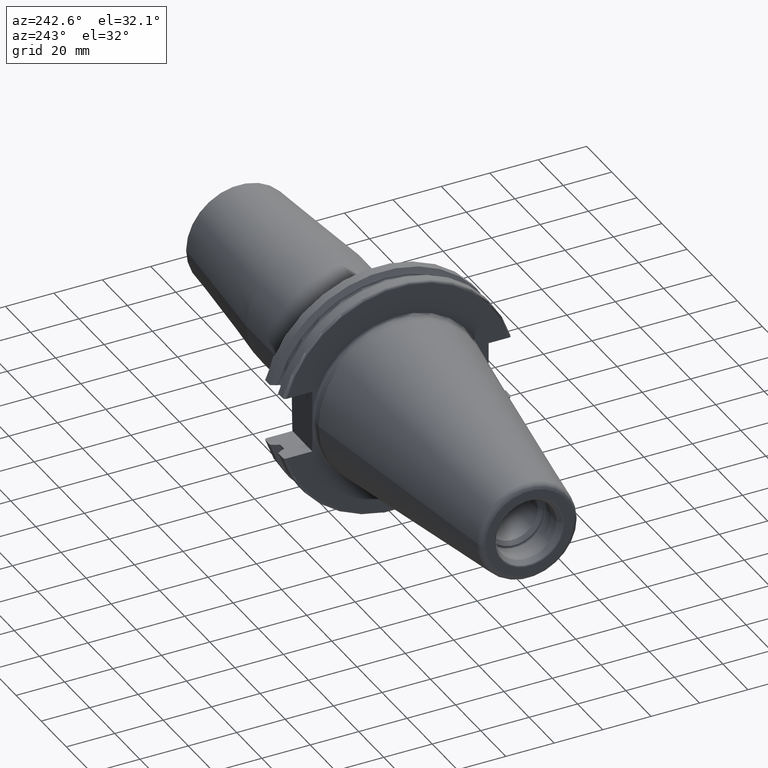
[diagram: clean part render]
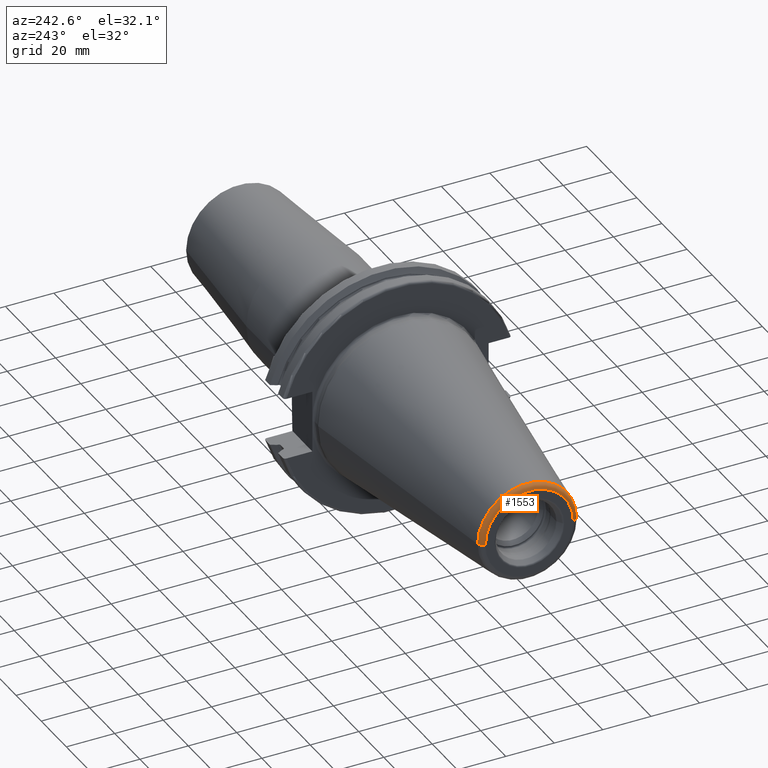
[diagram: same view with one face highlighted and labeled with its STEP entity id]
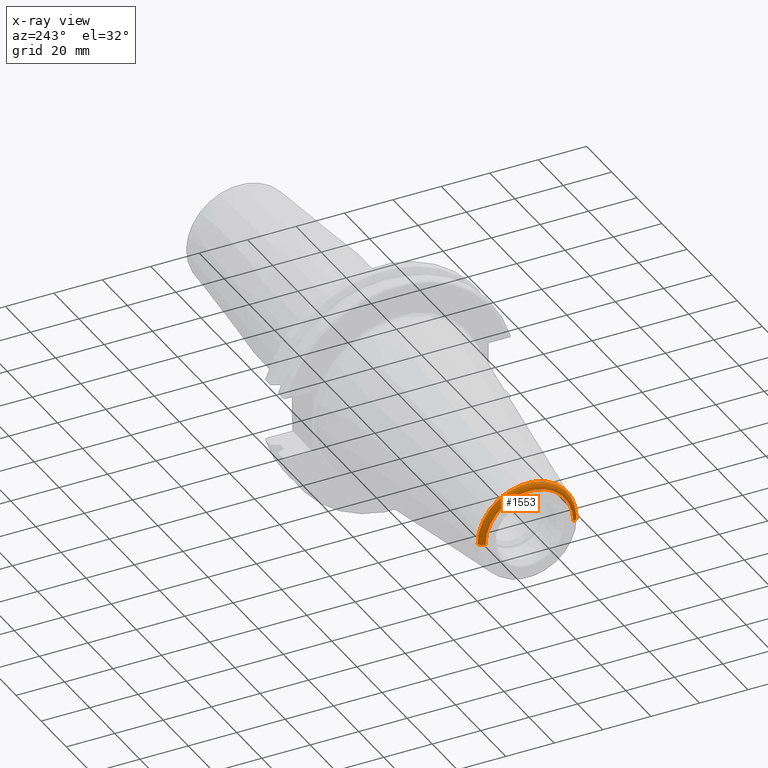
[diagram: x-ray of the same camera — body ghosted, the highlighted face saturated]
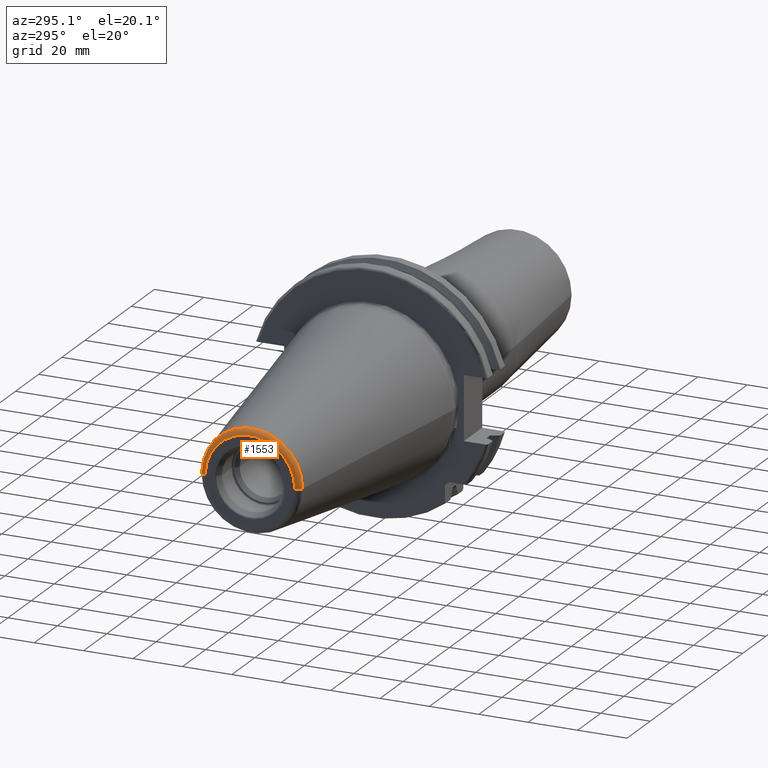
[diagram: same view with one face highlighted and labeled with its STEP entity id]
A machine part, auxiliary view. The second image highlights one B-rep face of the part: STEP entity #1553.
The next image is the same camera in x-ray: the body ghosted, the highlighted face saturated — about 0% of this face is hidden behind the body in this view.
A second angle (auxiliary view) of the same face is appended — the face is thin or edge-on in the first view.
In plain terms, the highlighted toroidal blend (fillet) surface has major radius 18.1614 mm and minor (blend) radius 2.25 mm.
Its self-contained STEP definition (entity closure, byte-faithful):
#7=CARTESIAN_POINT('',(-1.016E2,0.E0,0.E0));
#8=DIRECTION('',(1.E0,0.E0,0.E0));
#9=DIRECTION('',(0.E0,1.E0,0.E0));
#10=AXIS2_PLACEMENT_3D('',#7,#8,#9);
#22=CARTESIAN_POINT('',(-9.935E1,1.816144700117E1,0.E0));
#23=DIRECTION('',(0.E0,0.E0,1.E0));
#24=DIRECTION('',(-1.443186691705E-1,9.895312636440E-1,0.E0));
#25=AXIS2_PLACEMENT_3D('',#22,#23,#24);
#27=CARTESIAN_POINT('',(-9.935E1,-1.816144700117E1,0.E0));
#28=DIRECTION('',(0.E0,0.E0,-1.E0));
#29=DIRECTION('',(-1.443186691705E-1,-9.895312636440E-1,0.E0));
#30=AXIS2_PLACEMENT_3D('',#27,#28,#29);
#37=CARTESIAN_POINT('',(-9.967471700563E1,0.E0,0.E0));
#38=DIRECTION('',(1.E0,0.E0,0.E0));
#39=DIRECTION('',(0.E0,1.E0,0.E0));
#40=AXIS2_PLACEMENT_3D('',#37,#38,#39);
#1252=CARTESIAN_POINT('',(-9.967471700563E1,2.038789234437E1,0.E0));
#1253=CARTESIAN_POINT('',(-1.016E2,1.816144700117E1,0.E0));
#1254=VERTEX_POINT('',#1252);
#1255=VERTEX_POINT('',#1253);
#1256=CARTESIAN_POINT('',(-9.967471700563E1,-2.038789234437E1,0.E0));
#1257=CARTESIAN_POINT('',(-1.016E2,-1.816144700117E1,0.E0));
#1258=VERTEX_POINT('',#1256);
#1259=VERTEX_POINT('',#1257);
#1541=CARTESIAN_POINT('',(-9.935E1,0.E0,0.E0));
#1542=DIRECTION('',(1.E0,0.E0,0.E0));
#1543=DIRECTION('',(0.E0,-1.E0,0.E0));
#1544=AXIS2_PLACEMENT_3D('',#1541,#1542,#1543);
#1545=TOROIDAL_SURFACE('',#1544,1.816144700117E1,2.25E0);
#1546=ORIENTED_EDGE('',*,*,#1531,.F.);
#1548=ORIENTED_EDGE('',*,*,#1547,.T.);
#1549=ORIENTED_EDGE('',*,*,#1534,.T.);
#1550=ORIENTED_EDGE('',*,*,#1515,.F.);
#1551=EDGE_LOOP('',(#1546,#1548,#1549,#1550));
#1552=FACE_OUTER_BOUND('',#1551,.F.);
#1553=ADVANCED_FACE('',(#1552),#1545,.T.);
#11=CIRCLE('',#10,1.816144700117E1);
#26=CIRCLE('',#25,2.25E0);
#31=CIRCLE('',#30,2.25E0);
#41=CIRCLE('',#40,2.038789234437E1);
#1515=EDGE_CURVE('',#1255,#1259,#11,.T.);
#1531=EDGE_CURVE('',#1254,#1255,#26,.T.);
#1534=EDGE_CURVE('',#1258,#1259,#31,.T.);
#1547=EDGE_CURVE('',#1254,#1258,#41,.T.);